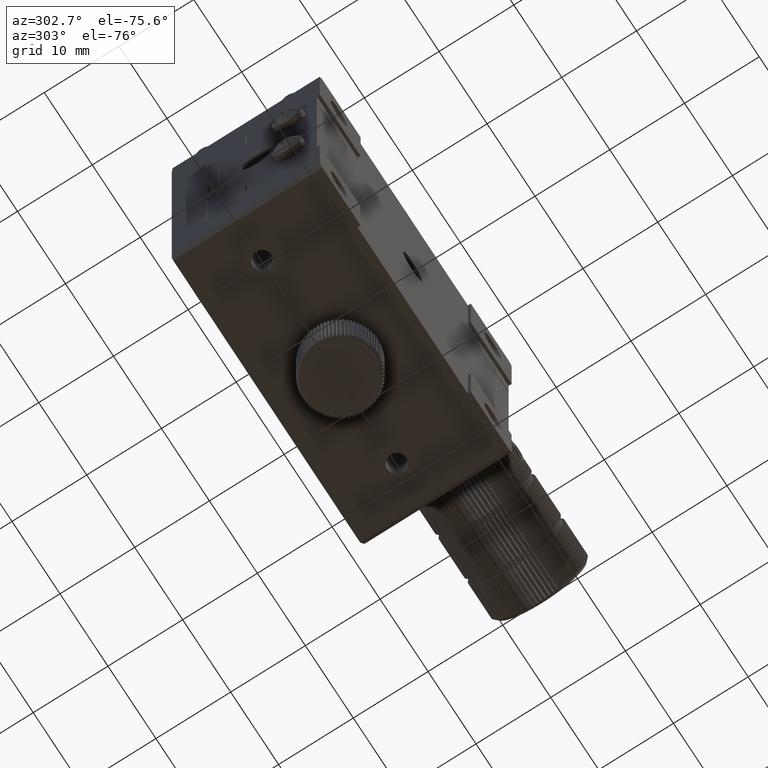
[diagram: clean part render]
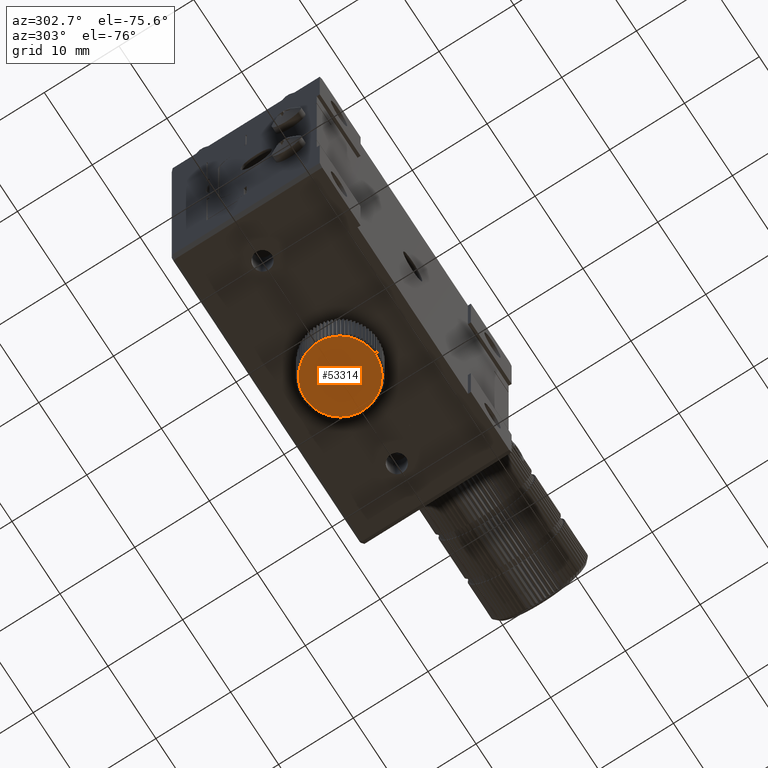
[diagram: same view with one face highlighted and labeled with its STEP entity id]
A machine part, auxiliary view. The second image highlights one B-rep face of the part: STEP entity #53314.
In plain terms, the highlighted planar face has unit normal (-0, -0, 1).
Its self-contained STEP definition (entity closure, byte-faithful):
#256 = ORIENTED_EDGE ( 'NONE', *, *, #23901, .F. ) ;
#514 = AXIS2_PLACEMENT_3D ( 'NONE', #41729, #52090, #58425 ) ;
#773 = EDGE_CURVE ( 'NONE', #45809, #7675, #7425, .T. ) ;
#820 = VERTEX_POINT ( 'NONE', #45579 ) ;
#827 = DIRECTION ( 'NONE',  ( 2.168404344996439155E-17, -3.491130995446218195E-15, 1.000000000000000000 ) ) ;
#975 = DIRECTION ( 'NONE',  ( 2.168404344996439155E-17, -3.491130995446218195E-15, 1.000000000000000000 ) ) ;
#1006 = ORIENTED_EDGE ( 'NONE', *, *, #43957, .F. ) ;
#1113 = DIRECTION ( 'NONE',  ( 0.000000000000000000, -1.000000000000000000, -3.506355962112837305E-15 ) ) ;
#1231 = VERTEX_POINT ( 'NONE', #56454 ) ;
#1389 = AXIS2_PLACEMENT_3D ( 'NONE', #54871, #15355, #24406 ) ;
#1409 = VERTEX_POINT ( 'NONE', #34017 ) ;
#1517 = AXIS2_PLACEMENT_3D ( 'NONE', #12290, #59127, #27690 ) ;
#1700 = CARTESIAN_POINT ( 'NONE',  ( -35.59315457866764376, -4.442869900124963856, -1.419323750673826545 ) ) ;
#1747 = AXIS2_PLACEMENT_3D ( 'NONE', #4681, #10391, #65633 ) ;
#1778 = CARTESIAN_POINT ( 'NONE',  ( -29.24642549279923998, 0.1682986944871039947, -1.419323750673810780 ) ) ;
#1896 = EDGE_CURVE ( 'NONE', #7675, #51471, #51354, .T. ) ;
#2040 = ORIENTED_EDGE ( 'NONE', *, *, #50740, .F. ) ;
#2436 = DIRECTION ( 'NONE',  ( 2.168404344996439155E-17, -3.491130995446218195E-15, 1.000000000000000000 ) ) ;
#2738 = EDGE_CURVE ( 'NONE', #9558, #44261, #52672, .T. ) ;
#2821 = EDGE_CURVE ( 'NONE', #14274, #23092, #13088, .T. ) ;
#2880 = ORIENTED_EDGE ( 'NONE', *, *, #49692, .F. ) ;
#2923 = DIRECTION ( 'NONE',  ( 0.000000000000000000, -1.000000000000000000, -3.506355962112837305E-15 ) ) ;
#3129 = CARTESIAN_POINT ( 'NONE',  ( -33.94169290550048856, -0.04256600815840694968, -1.419323750724288402 ) ) ;
#3220 = VERTEX_POINT ( 'NONE', #31158 ) ;
#3251 = CARTESIAN_POINT ( 'NONE',  ( -35.59315457866774324, 4.357737883808117552, -1.419323750673795681 ) ) ;
#3541 = ORIENTED_EDGE ( 'NONE', *, *, #40889, .F. ) ;
#3711 = CIRCLE ( 'NONE', #42214, 4.699999999957030106 ) ;
#3785 = VERTEX_POINT ( 'NONE', #35664 ) ;
#3975 = CARTESIAN_POINT ( 'NONE',  ( -33.94169290550048856, -0.04256600815840694968, -1.419323750724288402 ) ) ;
#4136 = DIRECTION ( 'NONE',  ( 0.000000000000000000, -1.000000000000000000, -3.506355962112837305E-15 ) ) ;
#4320 = DIRECTION ( 'NONE',  ( 0.000000000000000000, -1.000000000000000000, -3.506355962112837305E-15 ) ) ;
#4405 = EDGE_CURVE ( 'NONE', #62435, #26683, #17438, .T. ) ;
#4428 = CARTESIAN_POINT ( 'NONE',  ( -33.94169290550048856, -0.04256600815840694968, -1.419323750724288402 ) ) ;
#4503 = ORIENTED_EDGE ( 'NONE', *, *, #9650, .F. ) ;
#4541 = EDGE_CURVE ( 'NONE', #1409, #3785, #60157, .T. ) ;
#4590 = CARTESIAN_POINT ( 'NONE',  ( -33.94169290550048856, -0.04256600815840694968, -1.419323750724288402 ) ) ;
#4658 = CARTESIAN_POINT ( 'NONE',  ( -33.94169290550048856, -0.04256600815840694968, -1.419323750724288402 ) ) ;
#4681 = CARTESIAN_POINT ( 'NONE',  ( -33.94169290550048856, -0.04256600815840694968, -1.419323750724288402 ) ) ;
#4737 = CARTESIAN_POINT ( 'NONE',  ( -36.35231950928615419, -4.077275338050322162, -1.419323750673825213 ) ) ;
#4763 = AXIS2_PLACEMENT_3D ( 'NONE', #59121, #43416, #17939 ) ;
#5173 = DIRECTION ( 'NONE',  ( 0.000000000000000000, -1.000000000000000000, -3.506355962112837305E-15 ) ) ;
#5261 = CARTESIAN_POINT ( 'NONE',  ( -34.78091031104642639, 4.581903058212867919, -1.419323750673795459 ) ) ;
#5407 = AXIS2_PLACEMENT_3D ( 'NONE', #55379, #34987, #55058 ) ;
#5408 = VERTEX_POINT ( 'NONE', #45943 ) ;
#5526 = DIRECTION ( 'NONE',  ( 0.000000000000000000, -1.000000000000000000, -3.506355962112837305E-15 ) ) ;
#5567 = VERTEX_POINT ( 'NONE', #37237 ) ;
#5624 = DIRECTION ( 'NONE',  ( 0.000000000000000000, -1.000000000000000000, -3.506355962112837305E-15 ) ) ;
#5679 = ORIENTED_EDGE ( 'NONE', *, *, #56132, .F. ) ;
#5719 = CARTESIAN_POINT ( 'NONE',  ( -38.52385409271317940, 1.003282381426655379, -1.419323750673807227 ) ) ;
#5723 = DIRECTION ( 'NONE',  ( 0.000000000000000000, -1.000000000000000000, -3.506355962112837305E-15 ) ) ;
#5851 = CARTESIAN_POINT ( 'NONE',  ( -32.29023123233326942, -4.442869900124938098, -1.419323750673826545 ) ) ;
#6101 = DIRECTION ( 'NONE',  ( 2.168404344996439155E-17, -3.491130995446218195E-15, 1.000000000000000000 ) ) ;
#6169 = ORIENTED_EDGE ( 'NONE', *, *, #12548, .F. ) ;
#6372 = CARTESIAN_POINT ( 'NONE',  ( -33.94169290550048856, -0.04256600815840694968, -1.419323750724288402 ) ) ;
#6403 = EDGE_CURVE ( 'NONE', #55124, #63826, #64623, .T. ) ;
#6504 = VERTEX_POINT ( 'NONE', #32044 ) ;
#6526 = CARTESIAN_POINT ( 'NONE',  ( -33.94169290550048856, -0.04256600815840694968, -1.419323750724288402 ) ) ;
#6529 = ORIENTED_EDGE ( 'NONE', *, *, #62253, .F. ) ;
#6636 = VERTEX_POINT ( 'NONE', #33364 ) ;
#6657 = EDGE_CURVE ( 'NONE', #1231, #51564, #25096, .T. ) ;
#6669 = CIRCLE ( 'NONE', #36688, 4.699999999957030106 ) ;
#6728 = CIRCLE ( 'NONE', #1389, 4.699999999957030106 ) ;
#6813 = CARTESIAN_POINT ( 'NONE',  ( -34.36299765734271006, -4.723645189893240115, -1.419323750673827433 ) ) ;
#7011 = CIRCLE ( 'NONE', #36964, 4.699999999957030106 ) ;
#7367 = DIRECTION ( 'NONE',  ( 2.168404344996439155E-17, -3.491130995446218195E-15, 1.000000000000000000 ) ) ;
#7387 = CARTESIAN_POINT ( 'NONE',  ( -33.94169290550048856, -0.04256600815840694968, -1.419323750724288402 ) ) ;
#7425 = CIRCLE ( 'NONE', #56593, 4.699999999957030106 ) ;
#7497 = EDGE_CURVE ( 'NONE', #20499, #21149, #7011, .T. ) ;
#7564 = EDGE_CURVE ( 'NONE', #45220, #55124, #37015, .T. ) ;
#7566 = ORIENTED_EDGE ( 'NONE', *, *, #47468, .F. ) ;
#7615 = CARTESIAN_POINT ( 'NONE',  ( -37.33882876545813190, -3.290560458367019159, -1.419323750673822770 ) ) ;
#7670 = CARTESIAN_POINT ( 'NONE',  ( -29.24642549279923642, -0.2534307108038799661, -1.419323750673812334 ) ) ;
#7675 = VERTEX_POINT ( 'NONE', #46804 ) ;
#7694 = AXIS2_PLACEMENT_3D ( 'NONE', #35465, #51842, #27069 ) ;
#7776 = DIRECTION ( 'NONE',  ( 0.000000000000000000, -1.000000000000000000, -3.506355962112837305E-15 ) ) ;
#7994 = CARTESIAN_POINT ( 'NONE',  ( -31.90243933166660284, -4.277119687261061287, -1.419323750673826323 ) ) ;
#8335 = DIRECTION ( 'NONE',  ( 0.000000000000000000, -1.000000000000000000, -3.506355962112837305E-15 ) ) ;
#8360 = CARTESIAN_POINT ( 'NONE',  ( -31.17910221975114382, 3.759813865369100228, -1.419323750673797901 ) ) ;
#8687 = CIRCLE ( 'NONE', #53550, 4.699999999957030106 ) ;
#8943 = DIRECTION ( 'NONE',  ( -8.360076702596113391E-30, -3.491481338843264306E-15, 1.000000000000000000 ) ) ;
#9357 = CARTESIAN_POINT ( 'NONE',  ( -30.54455704554280260, -3.290560458366970753, -1.419323750673822326 ) ) ;
#9421 = CIRCLE ( 'NONE', #53250, 4.699999999957030106 ) ;
#9558 = VERTEX_POINT ( 'NONE', #54100 ) ;
#9603 = DIRECTION ( 'NONE',  ( 2.168404344996439155E-17, -3.491130995446218195E-15, 1.000000000000000000 ) ) ;
#9650 = EDGE_CURVE ( 'NONE', #51651, #42589, #29602, .T. ) ;
#9744 = ORIENTED_EDGE ( 'NONE', *, *, #64952, .F. ) ;
#9768 = CARTESIAN_POINT ( 'NONE',  ( -33.94169290550048856, 4.657433991798622941, -1.419323750673794571 ) ) ;
#9852 = CIRCLE ( 'NONE', #55814, 4.699999999957030106 ) ;
#9933 = FACE_OUTER_BOUND ( 'NONE', #33378, .T. ) ;
#9966 = CARTESIAN_POINT ( 'NONE',  ( -33.94169290550048856, -0.04256600815840694968, -1.419323750724288402 ) ) ;
#10031 = DIRECTION ( 'NONE',  ( 0.000000000000000000, -1.000000000000000000, -3.506355962112837305E-15 ) ) ;
#10081 = ORIENTED_EDGE ( 'NONE', *, *, #28110, .F. ) ;
#10082 = VERTEX_POINT ( 'NONE', #45488 ) ;
#10201 = DIRECTION ( 'NONE',  ( 0.000000000000000000, -1.000000000000000000, -3.506355962112837305E-15 ) ) ;
#10267 = DIRECTION ( 'NONE',  ( 0.000000000000000000, -1.000000000000000000, -3.491481338843264306E-15 ) ) ;
#10391 = DIRECTION ( 'NONE',  ( 2.168404344996439155E-17, -3.491130995446218195E-15, 1.000000000000000000 ) ) ;
#10413 = ORIENTED_EDGE ( 'NONE', *, *, #57406, .F. ) ;
#10435 = CARTESIAN_POINT ( 'NONE',  ( -33.94169290550048856, -0.04256600815840694968, -1.419323750724288402 ) ) ;
#10447 = CARTESIAN_POINT ( 'NONE',  ( -33.52038815365824576, 4.638513173576423121, -1.419323750673795015 ) ) ;
#10706 = AXIS2_PLACEMENT_3D ( 'NONE', #21458, #37907, #33195 ) ;
#10723 = ORIENTED_EDGE ( 'NONE', *, *, #42475, .F. ) ;
#10748 = EDGE_CURVE ( 'NONE', #52390, #10082, #56563, .T. ) ;
#10794 = CIRCLE ( 'NONE', #62103, 4.699999999957030106 ) ;
#10945 = CIRCLE ( 'NONE', #53700, 4.699999999957030106 ) ;
#11103 = CARTESIAN_POINT ( 'NONE',  ( -33.94169290550048856, -0.04256600815840694968, -1.419323750724288402 ) ) ;
#11402 = ORIENTED_EDGE ( 'NONE', *, *, #60275, .F. ) ;
#11759 = EDGE_CURVE ( 'NONE', #24717, #820, #24601, .T. ) ;
#11809 = EDGE_CURVE ( 'NONE', #42589, #5567, #41715, .T. ) ;
#11981 = VERTEX_POINT ( 'NONE', #62580 ) ;
#11997 = CIRCLE ( 'NONE', #43014, 4.699999999957030106 ) ;
#12021 = CIRCLE ( 'NONE', #23835, 4.699999999957030106 ) ;
#12047 = ORIENTED_EDGE ( 'NONE', *, *, #17854, .F. ) ;
#12244 = AXIS2_PLACEMENT_3D ( 'NONE', #11103, #31540, #51925 ) ;
#12290 = CARTESIAN_POINT ( 'NONE',  ( -33.94169290550048856, -0.04256600815840694968, -1.419323750724288402 ) ) ;
#12324 = CARTESIAN_POINT ( 'NONE',  ( -38.41165853204682179, -1.494945881707433699, -1.419323750673816331 ) ) ;
#12333 = DIRECTION ( 'NONE',  ( 2.168404344996439155E-17, -3.491130995446218195E-15, 1.000000000000000000 ) ) ;
#12548 = EDGE_CURVE ( 'NONE', #30925, #16914, #8687, .T. ) ;
#12707 = EDGE_CURVE ( 'NONE', #11981, #59552, #10794, .T. ) ;
#12856 = DIRECTION ( 'NONE',  ( 0.000000000000000000, -1.000000000000000000, -3.506355962112837305E-15 ) ) ;
#12899 = AXIS2_PLACEMENT_3D ( 'NONE', #3975, #24420, #23424 ) ;
#12961 = ORIENTED_EDGE ( 'NONE', *, *, #20350, .F. ) ;
#12985 = CARTESIAN_POINT ( 'NONE',  ( -37.33882876545820295, 3.205428442050132443, -1.419323750673799900 ) ) ;
#13054 = AXIS2_PLACEMENT_3D ( 'NONE', #17170, #37626, #1113 ) ;
#13088 = CIRCLE ( 'NONE', #50529, 4.699999999957030106 ) ;
#13508 = EDGE_CURVE ( 'NONE', #5408, #56886, #33354, .T. ) ;
#13707 = ORIENTED_EDGE ( 'NONE', *, *, #42725, .F. ) ;
#13796 = DIRECTION ( 'NONE',  ( 2.168404344996439155E-17, -3.491130995446218195E-15, 1.000000000000000000 ) ) ;
#14061 = CARTESIAN_POINT ( 'NONE',  ( -31.53106630171479452, 3.992143321733492289, -1.419323750673796791 ) ) ;
#14117 = CARTESIAN_POINT ( 'NONE',  ( -36.70428359124989015, 3.759813865369062036, -1.419323750673798346 ) ) ;
#14274 = VERTEX_POINT ( 'NONE', #10447 ) ;
#14858 = CARTESIAN_POINT ( 'NONE',  ( -30.84938089361212832, 3.496869882026222509, -1.419323750673798568 ) ) ;
#15274 = CARTESIAN_POINT ( 'NONE',  ( -33.94169290550046725, 4.957433991841591947, -1.419323750673793905 ) ) ;
#15314 = DIRECTION ( 'NONE',  ( 2.168404344996439155E-17, -3.491130995446218195E-15, 1.000000000000000000 ) ) ;
#15355 = DIRECTION ( 'NONE',  ( 2.168404344996439155E-17, -3.491130995446218195E-15, 1.000000000000000000 ) ) ;
#15407 = CIRCLE ( 'NONE', #41084, 4.699999999957030106 ) ;
#15429 = ORIENTED_EDGE ( 'NONE', *, *, #773, .F. ) ;
#15451 = DIRECTION ( 'NONE',  ( 2.168404344996439155E-17, -3.491130995446218195E-15, 1.000000000000000000 ) ) ;
#15519 = EDGE_CURVE ( 'NONE', #6636, #35961, #60246, .T. ) ;
#15580 = AXIS2_PLACEMENT_3D ( 'NONE', #19395, #59905, #18759 ) ;
#15621 = CARTESIAN_POINT ( 'NONE',  ( -33.10247549995460759, 4.581903058212878577, -1.419323750673795237 ) ) ;
#15665 = AXIS2_PLACEMENT_3D ( 'NONE', #3129, #39667, #40010 ) ;
#15786 = DIRECTION ( 'NONE',  ( 2.168404344996439155E-17, -3.491130995446218195E-15, 1.000000000000000000 ) ) ;
#15853 = DIRECTION ( 'NONE',  ( 0.000000000000000000, -1.000000000000000000, -3.506355962112837305E-15 ) ) ;
#15875 = EDGE_CURVE ( 'NONE', #10082, #42836, #12021, .T. ) ;
#15887 = CARTESIAN_POINT ( 'NONE',  ( -33.94169290550048856, -0.04256600815840694968, -1.419323750724288402 ) ) ;
#15986 = ORIENTED_EDGE ( 'NONE', *, *, #28415, .F. ) ;
#16300 = AXIS2_PLACEMENT_3D ( 'NONE', #33714, #54105, #54422 ) ;
#16372 = CARTESIAN_POINT ( 'NONE',  ( -38.63696031820174426, 0.1682986944870346058, -1.419323750673810780 ) ) ;
#16733 = VERTEX_POINT ( 'NONE', #50723 ) ;
#16736 = DIRECTION ( 'NONE',  ( 2.168404344996439155E-17, -3.491130995446218195E-15, 1.000000000000000000 ) ) ;
#16781 = DIRECTION ( 'NONE',  ( 2.168404344996439155E-17, -3.491130995446218195E-15, 1.000000000000000000 ) ) ;
#16914 = VERTEX_POINT ( 'NONE', #6813 ) ;
#17004 = DIRECTION ( 'NONE',  ( 0.000000000000000000, -1.000000000000000000, -3.506355962112837305E-15 ) ) ;
#17101 = AXIS2_PLACEMENT_3D ( 'NONE', #46232, #15451, #36214 ) ;
#17105 = DIRECTION ( 'NONE',  ( 2.168404344996439155E-17, -3.491130995446218195E-15, 1.000000000000000000 ) ) ;
#17150 = CARTESIAN_POINT ( 'NONE',  ( -33.94169290550048856, -0.04256600815840694968, -1.419323750724288402 ) ) ;
#17170 = CARTESIAN_POINT ( 'NONE',  ( -33.94169290550048856, -0.04256600815840694968, -1.419323750724288402 ) ) ;
#17223 = DIRECTION ( 'NONE',  ( 0.000000000000000000, -1.000000000000000000, -3.506355962112837305E-15 ) ) ;
#17428 = EDGE_CURVE ( 'NONE', #51396, #19238, #53348, .T. ) ;
#17438 = CIRCLE ( 'NONE', #54867, 4.699999999957030106 ) ;
#17569 = CIRCLE ( 'NONE', #55001, 4.699999999957030106 ) ;
#17714 = CIRCLE ( 'NONE', #63692, 4.699999999957030106 ) ;
#17854 = EDGE_CURVE ( 'NONE', #62421, #51651, #23477, .T. ) ;
#17939 = DIRECTION ( 'NONE',  ( 0.000000000000000000, -1.000000000000000000, -3.506355962112837305E-15 ) ) ;
#18472 = EDGE_CURVE ( 'NONE', #26683, #60857, #21403, .T. ) ;
#18759 = DIRECTION ( 'NONE',  ( 0.000000000000000000, -1.000000000000000000, -3.506355962112837305E-15 ) ) ;
#19235 = CIRCLE ( 'NONE', #20324, 4.699999999957030106 ) ;
#19238 = VERTEX_POINT ( 'NONE', #20151 ) ;
#19264 = VERTEX_POINT ( 'NONE', #9357 ) ;
#19277 = AXIS2_PLACEMENT_3D ( 'NONE', #22541, #2436, #64028 ) ;
#19344 = CARTESIAN_POINT ( 'NONE',  ( -33.94169290550048856, -0.04256600815840694968, -1.419323750724288402 ) ) ;
#19395 = CARTESIAN_POINT ( 'NONE',  ( -33.94169290550048856, -0.04256600815840694968, -1.419323750724288402 ) ) ;
#19674 = CARTESIAN_POINT ( 'NONE',  ( -29.28422902523377402, -0.6734623574956022374, -1.419323750673813667 ) ) ;
#19683 = AXIS2_PLACEMENT_3D ( 'NONE', #17150, #6101, #26552 ) ;
#19855 = VERTEX_POINT ( 'NONE', #45109 ) ;
#20025 = DIRECTION ( 'NONE',  ( 0.000000000000000000, -1.000000000000000000, -3.506355962112837305E-15 ) ) ;
#20044 = CARTESIAN_POINT ( 'NONE',  ( -35.19206607965237055, -4.573191453387513761, -1.419323750673826767 ) ) ;
#20131 = CARTESIAN_POINT ( 'NONE',  ( -29.61991237454817494, -1.889783656914948651, -1.419323750673817219 ) ) ;
#20151 = CARTESIAN_POINT ( 'NONE',  ( -29.35953171828780484, -1.088414397743507678, -1.419323750673814999 ) ) ;
#20230 = AXIS2_PLACEMENT_3D ( 'NONE', #9966, #49456, #45772 ) ;
#20269 = CARTESIAN_POINT ( 'NONE',  ( -36.35231950928623945, 3.992143321733459427, -1.419323750673796791 ) ) ;
#20324 = AXIS2_PLACEMENT_3D ( 'NONE', #54691, #48672, #12856 ) ;
#20350 = EDGE_CURVE ( 'NONE', #42870, #47999, #41140, .T. ) ;
#20499 = VERTEX_POINT ( 'NONE', #14061 ) ;
#20516 = ORIENTED_EDGE ( 'NONE', *, *, #48169, .F. ) ;
#20565 = ORIENTED_EDGE ( 'NONE', *, *, #31325, .F. ) ;
#20577 = DIRECTION ( 'NONE',  ( 2.168404344996439155E-17, -3.491130995446218195E-15, 1.000000000000000000 ) ) ;
#21149 = VERTEX_POINT ( 'NONE', #66168 ) ;
#21286 = CARTESIAN_POINT ( 'NONE',  ( -33.94169290550048856, -0.04256600815840694968, -1.419323750724288402 ) ) ;
#21386 = DIRECTION ( 'NONE',  ( 0.000000000000000000, -1.000000000000000000, -3.506355962112837305E-15 ) ) ;
#21394 = ORIENTED_EDGE ( 'NONE', *, *, #2821, .F. ) ;
#21403 = CIRCLE ( 'NONE', #54304, 4.699999999957030106 ) ;
#21416 = DIRECTION ( 'NONE',  ( 2.168404344996439155E-17, -3.491130995446218195E-15, 1.000000000000000000 ) ) ;
#21458 = CARTESIAN_POINT ( 'NONE',  ( -33.94169290550048856, -0.04256600815840694968, -1.419323750724288402 ) ) ;
#21580 = CARTESIAN_POINT ( 'NONE',  ( -31.53106630171475899, -4.077275338050287523, -1.419323750673825213 ) ) ;
#21626 = CARTESIAN_POINT ( 'NONE',  ( -32.29023123233330494, 4.357737883808140644, -1.419323750673795681 ) ) ;
#21999 = ORIENTED_EDGE ( 'NONE', *, *, #47016, .F. ) ;
#22166 = VERTEX_POINT ( 'NONE', #7994 ) ;
#22266 = CARTESIAN_POINT ( 'NONE',  ( -33.10247549995457916, -4.667035074529688465, -1.419323750673827655 ) ) ;
#22408 = DIRECTION ( 'NONE',  ( 2.168404344996439155E-17, -3.491130995446218195E-15, 1.000000000000000000 ) ) ;
#22541 = CARTESIAN_POINT ( 'NONE',  ( -33.94169290550048856, -0.04256600815840694968, -1.419323750724288402 ) ) ;
#22567 = CARTESIAN_POINT ( 'NONE',  ( -33.94169290550048856, -0.04256600815840694968, -1.419323750724288402 ) ) ;
#22598 = AXIS2_PLACEMENT_3D ( 'NONE', #45685, #55698, #10201 ) ;
#22655 = CIRCLE ( 'NONE', #7694, 4.699999999957030106 ) ;
#22695 = CARTESIAN_POINT ( 'NONE',  ( -33.94169290550048856, -0.04256600815840694968, -1.419323750724288402 ) ) ;
#22744 = AXIS2_PLACEMENT_3D ( 'NONE', #63440, #38027, #17223 ) ;
#22804 = AXIS2_PLACEMENT_3D ( 'NONE', #33817, #22408, #8335 ) ;
#22845 = CIRCLE ( 'NONE', #51717, 4.699999999957030106 ) ;
#22975 = ORIENTED_EDGE ( 'NONE', *, *, #51109, .F. ) ;
#22985 = ORIENTED_EDGE ( 'NONE', *, *, #61994, .F. ) ;
#23016 = ORIENTED_EDGE ( 'NONE', *, *, #28784, .F. ) ;
#23020 = EDGE_CURVE ( 'NONE', #16914, #6504, #37558, .T. ) ;
#23092 = VERTEX_POINT ( 'NONE', #9768 ) ;
#23240 = EDGE_CURVE ( 'NONE', #35195, #51396, #39769, .T. ) ;
#23358 = CARTESIAN_POINT ( 'NONE',  ( -29.47172727895413402, 1.409813865390581400, -1.419323750673805895 ) ) ;
#23424 = DIRECTION ( 'NONE',  ( 0.000000000000000000, -1.000000000000000000, -3.506355962112837305E-15 ) ) ;
#23450 = AXIS2_PLACEMENT_3D ( 'NONE', #51939, #16781, #31867 ) ;
#23477 = CIRCLE ( 'NONE', #60891, 4.699999999957030106 ) ;
#23685 = CIRCLE ( 'NONE', #36566, 4.699999999957030106 ) ;
#23817 = AXIS2_PLACEMENT_3D ( 'NONE', #4590, #15314, #45781 ) ;
#23835 = AXIS2_PLACEMENT_3D ( 'NONE', #50881, #61567, #4320 ) ;
#23901 = EDGE_CURVE ( 'NONE', #56886, #44407, #53675, .T. ) ;
#23935 = AXIS2_PLACEMENT_3D ( 'NONE', #48569, #17105, #54255 ) ;
#23998 = CIRCLE ( 'NONE', #1517, 4.699999999957030106 ) ;
#24021 = DIRECTION ( 'NONE',  ( 0.000000000000000000, -1.000000000000000000, -3.506355962112837305E-15 ) ) ;
#24052 = AXIS2_PLACEMENT_3D ( 'NONE', #21286, #51451, #47970 ) ;
#24406 = DIRECTION ( 'NONE',  ( 0.000000000000000000, -1.000000000000000000, -3.506355962112837305E-15 ) ) ;
#24420 = DIRECTION ( 'NONE',  ( 2.168404344996439155E-17, -3.491130995446218195E-15, 1.000000000000000000 ) ) ;
#24551 = ORIENTED_EDGE ( 'NONE', *, *, #13508, .F. ) ;
#24601 = CIRCLE ( 'NONE', #10706, 4.699999999957030106 ) ;
#24717 = VERTEX_POINT ( 'NONE', #16372 ) ;
#24734 = ORIENTED_EDGE ( 'NONE', *, *, #45901, .F. ) ;
#24789 = AXIS2_PLACEMENT_3D ( 'NONE', #6526, #42717, #41730 ) ;
#24882 = DIRECTION ( 'NONE',  ( 2.168404344996439155E-17, -3.491130995446218195E-15, 1.000000000000000000 ) ) ;
#25096 = CIRCLE ( 'NONE', #4763, 4.699999999957030106 ) ;
#25165 = DIRECTION ( 'NONE',  ( 0.000000000000000000, -1.000000000000000000, -3.506355962112837305E-15 ) ) ;
#25167 = CARTESIAN_POINT ( 'NONE',  ( -33.94169290550048856, -0.04256600815840694968, -1.419323750724288402 ) ) ;
#25613 = VERTEX_POINT ( 'NONE', #7615 ) ;
#25691 = DIRECTION ( 'NONE',  ( 2.168404344996439155E-17, -3.491130995446218195E-15, 1.000000000000000000 ) ) ;
#25962 = DIRECTION ( 'NONE',  ( 0.000000000000000000, -1.000000000000000000, -3.506355962112837305E-15 ) ) ;
#26401 = CARTESIAN_POINT ( 'NONE',  ( -33.94169290550048856, -0.04256600815840694968, -1.419323750724288402 ) ) ;
#26552 = DIRECTION ( 'NONE',  ( 0.000000000000000000, -1.000000000000000000, -3.506355962112837305E-15 ) ) ;
#26601 = ORIENTED_EDGE ( 'NONE', *, *, #58715, .F. ) ;
#26610 = DIRECTION ( 'NONE',  ( 2.168404344996439155E-17, -3.491130995446218195E-15, 1.000000000000000000 ) ) ;
#26683 = VERTEX_POINT ( 'NONE', #1778 ) ;
#26833 = DIRECTION ( 'NONE',  ( 0.000000000000000000, -1.000000000000000000, -3.506355962112837305E-15 ) ) ;
#27069 = DIRECTION ( 'NONE',  ( 0.000000000000000000, -1.000000000000000000, -3.506355962112837305E-15 ) ) ;
#27215 = CARTESIAN_POINT ( 'NONE',  ( -37.61630087306659931, -2.972968076867706255, -1.419323750673821660 ) ) ;
#27417 = EDGE_CURVE ( 'NONE', #59552, #35195, #62354, .T. ) ;
#27594 = ORIENTED_EDGE ( 'NONE', *, *, #4405, .F. ) ;
#27690 = DIRECTION ( 'NONE',  ( 0.000000000000000000, -1.000000000000000000, -3.506355962112837305E-15 ) ) ;
#27734 = DIRECTION ( 'NONE',  ( 2.168404344996439155E-17, -3.491130995446218195E-15, 1.000000000000000000 ) ) ;
#27757 = VERTEX_POINT ( 'NONE', #22266 ) ;
#27809 = DIRECTION ( 'NONE',  ( 2.168404344996439155E-17, -3.491130995446218195E-15, 1.000000000000000000 ) ) ;
#27811 = DIRECTION ( 'NONE',  ( 0.000000000000000000, -1.000000000000000000, -3.506355962112837305E-15 ) ) ;
#27832 = DIRECTION ( 'NONE',  ( 2.168404344996439155E-17, -3.491130995446218195E-15, 1.000000000000000000 ) ) ;
#27858 = ORIENTED_EDGE ( 'NONE', *, *, #53449, .F. ) ;
#28082 = CARTESIAN_POINT ( 'NONE',  ( -37.03400491738882039, -3.582001898343060819, -1.419323750673823881 ) ) ;
#28110 = EDGE_CURVE ( 'NONE', #35317, #50335, #52854, .T. ) ;
#28182 = DIRECTION ( 'NONE',  ( 0.000000000000000000, -1.000000000000000000, -3.506355962112837305E-15 ) ) ;
#28383 = ORIENTED_EDGE ( 'NONE', *, *, #35436, .F. ) ;
#28403 = CARTESIAN_POINT ( 'NONE',  ( -33.94169290550048856, -0.04256600815840694968, -1.419323750724288402 ) ) ;
#28415 = EDGE_CURVE ( 'NONE', #42123, #49501, #65659, .T. ) ;
#28590 = CIRCLE ( 'NONE', #30702, 4.699999999957030106 ) ;
#28730 = CARTESIAN_POINT ( 'NONE',  ( -38.26347343645281285, 1.804651640598099682, -1.419323750673805007 ) ) ;
#28784 = EDGE_CURVE ( 'NONE', #58057, #1231, #56086, .T. ) ;
#28787 = ORIENTED_EDGE ( 'NONE', *, *, #55372, .F. ) ;
#28884 = CARTESIAN_POINT ( 'NONE',  ( -33.94169290550048856, -0.04256600815840694968, -1.419323750724288402 ) ) ;
#28971 = AXIS2_PLACEMENT_3D ( 'NONE', #39448, #9603, #55140 ) ;
#28996 = CARTESIAN_POINT ( 'NONE',  ( -33.94169290550048856, -0.04256600815840694968, -1.419323750724288402 ) ) ;
#29279 = ORIENTED_EDGE ( 'NONE', *, *, #10748, .F. ) ;
#29357 = CARTESIAN_POINT ( 'NONE',  ( -33.94169290550048856, -0.04256600815840694968, -1.419323750724288402 ) ) ;
#29602 = CIRCLE ( 'NONE', #1747, 4.699999999957030106 ) ;
#29684 = DIRECTION ( 'NONE',  ( 0.000000000000000000, -1.000000000000000000, -3.506355962112837305E-15 ) ) ;
#29853 = VERTEX_POINT ( 'NONE', #33315 ) ;
#30343 = DIRECTION ( 'NONE',  ( 0.000000000000000000, -1.000000000000000000, -3.506355962112837305E-15 ) ) ;
#30702 = AXIS2_PLACEMENT_3D ( 'NONE', #61716, #36644, #15853 ) ;
#30724 = ORIENTED_EDGE ( 'NONE', *, *, #61605, .F. ) ;
#30925 = VERTEX_POINT ( 'NONE', #57108 ) ;
#31158 = CARTESIAN_POINT ( 'NONE',  ( -34.36299765734280953, 4.638513173576417792, -1.419323750673795459 ) ) ;
#31198 = DIRECTION ( 'NONE',  ( 0.000000000000000000, -1.000000000000000000, -3.506355962112837305E-15 ) ) ;
#31325 = EDGE_CURVE ( 'NONE', #51471, #29853, #28590, .T. ) ;
#31353 = ORIENTED_EDGE ( 'NONE', *, *, #63218, .F. ) ;
#31459 = CARTESIAN_POINT ( 'NONE',  ( -38.08049190518934779, 2.184616705444286655, -1.419323750673803897 ) ) ;
#31540 = DIRECTION ( 'NONE',  ( 2.168404344996439155E-17, -3.491130995446218195E-15, 1.000000000000000000 ) ) ;
#31724 = CARTESIAN_POINT ( 'NONE',  ( -33.94169290550048856, -0.04256600815840694968, -1.419323750724288402 ) ) ;
#31840 = CIRCLE ( 'NONE', #33995, 4.699999999957030106 ) ;
#31867 = DIRECTION ( 'NONE',  ( 0.000000000000000000, -1.000000000000000000, -3.506355962112837305E-15 ) ) ;
#31905 = VERTEX_POINT ( 'NONE', #5261 ) ;
#32044 = CARTESIAN_POINT ( 'NONE',  ( -33.94169290550048856, -4.742566008115437270, -1.419323750673827655 ) ) ;
#32333 = EDGE_CURVE ( 'NONE', #50335, #30925, #41349, .T. ) ;
#32606 = AXIS2_PLACEMENT_3D ( 'NONE', #64061, #16736, #57885 ) ;
#32708 = DIRECTION ( 'NONE',  ( 2.168404344996439155E-17, -3.491130995446218195E-15, 1.000000000000000000 ) ) ;
#33143 = AXIS2_PLACEMENT_3D ( 'NONE', #61533, #45821, #49852 ) ;
#33150 = ORIENTED_EDGE ( 'NONE', *, *, #6657, .F. ) ;
#33195 = DIRECTION ( 'NONE',  ( 0.000000000000000000, -1.000000000000000000, -3.506355962112837305E-15 ) ) ;
#33315 = CARTESIAN_POINT ( 'NONE',  ( -35.98094647933430679, -4.277119687261089709, -1.419323750673825657 ) ) ;
#33321 = CIRCLE ( 'NONE', #22598, 4.699999999957030106 ) ;
#33354 = CIRCLE ( 'NONE', #24789, 4.699999999957030106 ) ;
#33364 = CARTESIAN_POINT ( 'NONE',  ( -35.19206607965245581, 4.488059437070673674, -1.419323750673795903 ) ) ;
#33378 = EDGE_LOOP ( 'NONE', ( #20516, #52041, #6169, #54097, #10081, #64519, #20565, #50359, #15429, #60371, #28383, #38908, #44906, #31353, #51740, #256, #24551, #27858, #33535, #36428, #53884, #33150, #23016, #10413, #38587, #22985, #22975, #50742, #29279, #65883, #13707, #46750, #36256, #3541, #2040, #6529, #21394, #38314, #28787, #10723, #7566, #61594, #21999, #2880, #62546, #46854, #59362, #26601, #47672, #4503, #12047, #5679, #46142, #27594, #39510, #58790, #36185, #43709, #37854, #55255, #44268, #11402, #30724, #9744, #15986, #24734, #34705, #12961, #54339, #1006 ) ) ;
#33518 = AXIS2_PLACEMENT_3D ( 'NONE', #34736, #44115, #24021 ) ;
#33535 = ORIENTED_EDGE ( 'NONE', *, *, #11759, .F. ) ;
#33576 = VERTEX_POINT ( 'NONE', #14858 ) ;
#33714 = CARTESIAN_POINT ( 'NONE',  ( -33.94169290550048856, -0.04256600815840694968, -1.419323750724288402 ) ) ;
#33811 = DIRECTION ( 'NONE',  ( 0.000000000000000000, -1.000000000000000000, -3.506355962112837305E-15 ) ) ;
#33817 = CARTESIAN_POINT ( 'NONE',  ( -33.94169290550048856, -0.04256600815840694968, -1.419323750724288402 ) ) ;
#33847 = CARTESIAN_POINT ( 'NONE',  ( -33.94169290550048856, -0.04256600815840694968, -1.419323750724288402 ) ) ;
#33868 = AXIS2_PLACEMENT_3D ( 'NONE', #47200, #36888, #31198 ) ;
#33995 = AXIS2_PLACEMENT_3D ( 'NONE', #28996, #60416, #65117 ) ;
#34017 = CARTESIAN_POINT ( 'NONE',  ( -30.26708493793436361, 2.887836060550867501, -1.419323750673800566 ) ) ;
#34221 = CARTESIAN_POINT ( 'NONE',  ( -37.86418719795471333, -2.631781820959664397, -1.419323750673820328 ) ) ;
#34315 = CIRCLE ( 'NONE', #5407, 4.699999999957030106 ) ;
#34508 = CARTESIAN_POINT ( 'NONE',  ( -33.94169290550048856, -0.04256600815840694968, -1.419323750724288402 ) ) ;
#34606 = AXIS2_PLACEMENT_3D ( 'NONE', #51737, #827, #5173 ) ;
#34705 = ORIENTED_EDGE ( 'NONE', *, *, #39125, .F. ) ;
#34736 = CARTESIAN_POINT ( 'NONE',  ( -33.94169290550048856, -0.04256600815840694968, -1.419323750724288402 ) ) ;
#34987 = DIRECTION ( 'NONE',  ( 2.168404344996439155E-17, -3.491130995446218195E-15, 1.000000000000000000 ) ) ;
#35195 = VERTEX_POINT ( 'NONE', #20131 ) ;
#35317 = VERTEX_POINT ( 'NONE', #1700 ) ;
#35339 = CIRCLE ( 'NONE', #52425, 4.699999999957030106 ) ;
#35436 = EDGE_CURVE ( 'NONE', #63826, #25613, #15407, .T. ) ;
#35465 = CARTESIAN_POINT ( 'NONE',  ( -33.94169290550048856, -0.04256600815840694968, -1.419323750724288402 ) ) ;
#35602 = CIRCLE ( 'NONE', #62296, 4.699999999957030106 ) ;
#35627 = CIRCLE ( 'NONE', #23817, 4.699999999957030106 ) ;
#35664 = CARTESIAN_POINT ( 'NONE',  ( -30.54455704554282391, 3.205428442050180848, -1.419323750673800344 ) ) ;
#35776 = AXIS2_PLACEMENT_3D ( 'NONE', #19344, #25691, #64896 ) ;
#35896 = DIRECTION ( 'NONE',  ( 2.168404344996439155E-17, -3.491130995446218195E-15, 1.000000000000000000 ) ) ;
#35961 = VERTEX_POINT ( 'NONE', #3251 ) ;
#36185 = ORIENTED_EDGE ( 'NONE', *, *, #17428, .F. ) ;
#36194 = EDGE_CURVE ( 'NONE', #25613, #45809, #39089, .T. ) ;
#36214 = DIRECTION ( 'NONE',  ( 0.000000000000000000, -1.000000000000000000, -3.506355962112837305E-15 ) ) ;
#36256 = ORIENTED_EDGE ( 'NONE', *, *, #15519, .F. ) ;
#36428 = ORIENTED_EDGE ( 'NONE', *, *, #37774, .F. ) ;
#36566 = AXIS2_PLACEMENT_3D ( 'NONE', #28884, #13796, #7776 ) ;
#36644 = DIRECTION ( 'NONE',  ( 2.168404344996439155E-17, -3.491130995446218195E-15, 1.000000000000000000 ) ) ;
#36688 = AXIS2_PLACEMENT_3D ( 'NONE', #26401, #41168, #5624 ) ;
#36888 = DIRECTION ( 'NONE',  ( 2.168404344996439155E-17, -3.491130995446218195E-15, 1.000000000000000000 ) ) ;
#36964 = AXIS2_PLACEMENT_3D ( 'NONE', #4658, #55878, #54899 ) ;
#37015 = CIRCLE ( 'NONE', #15580, 4.699999999957030106 ) ;
#37237 = CARTESIAN_POINT ( 'NONE',  ( -29.80289390581166842, 2.184616705444345719, -1.419323750673803675 ) ) ;
#37247 = VERTEX_POINT ( 'NONE', #19674 ) ;
#37558 = CIRCLE ( 'NONE', #38662, 4.699999999957030106 ) ;
#37626 = DIRECTION ( 'NONE',  ( 2.168404344996439155E-17, -3.491130995446218195E-15, 1.000000000000000000 ) ) ;
#37676 = VERTEX_POINT ( 'NONE', #55608 ) ;
#37731 = DIRECTION ( 'NONE',  ( 0.000000000000000000, -1.000000000000000000, -3.506355962112837305E-15 ) ) ;
#37774 = EDGE_CURVE ( 'NONE', #37676, #24717, #43455, .T. ) ;
#37813 = CIRCLE ( 'NONE', #34606, 4.699999999957030106 ) ;
#37854 = ORIENTED_EDGE ( 'NONE', *, *, #27417, .F. ) ;
#37907 = DIRECTION ( 'NONE',  ( 2.168404344996439155E-17, -3.491130995446218195E-15, 1.000000000000000000 ) ) ;
#38027 = DIRECTION ( 'NONE',  ( 2.168404344996439155E-17, -3.491130995446218195E-15, 1.000000000000000000 ) ) ;
#38314 = ORIENTED_EDGE ( 'NONE', *, *, #40550, .F. ) ;
#38587 = ORIENTED_EDGE ( 'NONE', *, *, #2738, .F. ) ;
#38651 = AXIS2_PLACEMENT_3D ( 'NONE', #28403, #27734, #17004 ) ;
#38662 = AXIS2_PLACEMENT_3D ( 'NONE', #25167, #35896, #45920 ) ;
#38852 = CIRCLE ( 'NONE', #22804, 4.699999999957030106 ) ;
#38908 = ORIENTED_EDGE ( 'NONE', *, *, #6403, .F. ) ;
#38942 = DIRECTION ( 'NONE',  ( 2.168404344996439155E-17, -3.491130995446218195E-15, 1.000000000000000000 ) ) ;
#39089 = CIRCLE ( 'NONE', #24052, 4.699999999957030106 ) ;
#39125 = EDGE_CURVE ( 'NONE', #47999, #22166, #31840, .T. ) ;
#39448 = CARTESIAN_POINT ( 'NONE',  ( -33.94169290550048856, -0.04256600815840694968, -1.419323750724288402 ) ) ;
#39506 = CARTESIAN_POINT ( 'NONE',  ( -33.94169290550048856, -0.04256600815840694968, -1.419323750724288402 ) ) ;
#39510 = ORIENTED_EDGE ( 'NONE', *, *, #42673, .F. ) ;
#39523 = CARTESIAN_POINT ( 'NONE',  ( -33.94169290550048856, -0.04256600815840694968, -1.419323750724288402 ) ) ;
#39531 = DIRECTION ( 'NONE',  ( 2.168404344996439155E-17, -3.491130995446218195E-15, 1.000000000000000000 ) ) ;
#39561 = CARTESIAN_POINT ( 'NONE',  ( -29.28422902523377402, 0.5883303411788193271, -1.419323750673809226 ) ) ;
#39667 = DIRECTION ( 'NONE',  ( 2.168404344996439155E-17, -3.491130995446218195E-15, 1.000000000000000000 ) ) ;
#39691 = CARTESIAN_POINT ( 'NONE',  ( -33.94169290550048856, -0.04256600815840694968, -1.419323750724288402 ) ) ;
#39769 = CIRCLE ( 'NONE', #50439, 4.699999999957030106 ) ;
#39833 = DIRECTION ( 'NONE',  ( 2.168404344996439155E-17, -3.491130995446218195E-15, 1.000000000000000000 ) ) ;
#40010 = DIRECTION ( 'NONE',  ( 0.000000000000000000, -1.000000000000000000, -3.506355962112837305E-15 ) ) ;
#40102 = DIRECTION ( 'NONE',  ( 0.000000000000000000, -1.000000000000000000, -3.506355962112837305E-15 ) ) ;
#40550 = EDGE_CURVE ( 'NONE', #44709, #14274, #35339, .T. ) ;
#40720 = CARTESIAN_POINT ( 'NONE',  ( -33.94169290550048856, -0.04256600815840694968, -1.419323750724288402 ) ) ;
#40825 = CARTESIAN_POINT ( 'NONE',  ( -30.26708493793433874, -2.972968076867653853, -1.419323750673821216 ) ) ;
#40889 = EDGE_CURVE ( 'NONE', #31905, #6636, #57818, .T. ) ;
#40893 = AXIS2_PLACEMENT_3D ( 'NONE', #43840, #53216, #58554 ) ;
#40912 = CIRCLE ( 'NONE', #53737, 4.699999999957030106 ) ;
#40982 = AXIS2_PLACEMENT_3D ( 'NONE', #7387, #27832, #48882 ) ;
#41084 = AXIS2_PLACEMENT_3D ( 'NONE', #34508, #43879, #44226 ) ;
#41140 = CIRCLE ( 'NONE', #12244, 4.699999999957030106 ) ;
#41168 = DIRECTION ( 'NONE',  ( 2.168404344996439155E-17, -3.491130995446218195E-15, 1.000000000000000000 ) ) ;
#41192 = DIRECTION ( 'NONE',  ( 0.000000000000000000, -1.000000000000000000, -3.506355962112837305E-15 ) ) ;
#41349 = CIRCLE ( 'NONE', #15665, 4.699999999957030106 ) ;
#41506 = CARTESIAN_POINT ( 'NONE',  ( -33.94169290550048856, -0.04256600815840694968, -1.419323750724288402 ) ) ;
#41606 = AXIS2_PLACEMENT_3D ( 'NONE', #61644, #15786, #5723 ) ;
#41715 = CIRCLE ( 'NONE', #50259, 4.699999999957030106 ) ;
#41730 = DIRECTION ( 'NONE',  ( 0.000000000000000000, -1.000000000000000000, -3.506355962112837305E-15 ) ) ;
#41729 = CARTESIAN_POINT ( 'NONE',  ( -33.94169290550048856, -0.04256600815840694968, -1.419323750724288402 ) ) ;
#41944 = VERTEX_POINT ( 'NONE', #46775 ) ;
#42031 = AXIS2_PLACEMENT_3D ( 'NONE', #39506, #39833, #20025 ) ;
#42053 = CARTESIAN_POINT ( 'NONE',  ( -33.94169290550048856, -0.04256600815840694968, -1.419323750724288402 ) ) ;
#42123 = VERTEX_POINT ( 'NONE', #21580 ) ;
#42164 = AXIS2_PLACEMENT_3D ( 'NONE', #10435, #50619, #25165 ) ;
#42214 = AXIS2_PLACEMENT_3D ( 'NONE', #22567, #62430, #58379 ) ;
#42317 = CARTESIAN_POINT ( 'NONE',  ( -38.26347343645277732, -1.889783656915007493, -1.419323750673817885 ) ) ;
#42475 = EDGE_CURVE ( 'NONE', #43091, #43690, #53710, .T. ) ;
#42589 = VERTEX_POINT ( 'NONE', #48517 ) ;
#42673 = EDGE_CURVE ( 'NONE', #37247, #62435, #55921, .T. ) ;
#42717 = DIRECTION ( 'NONE',  ( 2.168404344996439155E-17, -3.491130995446218195E-15, 1.000000000000000000 ) ) ;
#42725 = EDGE_CURVE ( 'NONE', #16733, #53356, #6728, .T. ) ;
#42836 = VERTEX_POINT ( 'NONE', #12985 ) ;
#42870 = VERTEX_POINT ( 'NONE', #52603 ) ;
#42985 = EDGE_CURVE ( 'NONE', #29853, #35317, #35627, .T. ) ;
#43014 = AXIS2_PLACEMENT_3D ( 'NONE', #58900, #27809, #48197 ) ;
#43091 = VERTEX_POINT ( 'NONE', #21626 ) ;
#43244 = CARTESIAN_POINT ( 'NONE',  ( -33.94169290550048856, -0.04256600815840694968, -1.419323750724288402 ) ) ;
#43275 = CARTESIAN_POINT ( 'NONE',  ( -33.94169290550048856, -0.04256600815840694968, -1.419323750724288402 ) ) ;
#43416 = DIRECTION ( 'NONE',  ( 2.168404344996439155E-17, -3.491130995446218195E-15, 1.000000000000000000 ) ) ;
#43455 = CIRCLE ( 'NONE', #33868, 4.699999999957030106 ) ;
#43690 = VERTEX_POINT ( 'NONE', #65985 ) ;
#43709 = ORIENTED_EDGE ( 'NONE', *, *, #23240, .F. ) ;
#43838 = AXIS2_PLACEMENT_3D ( 'NONE', #46856, #21416, #47185 ) ;
#43840 = CARTESIAN_POINT ( 'NONE',  ( -33.94169290550048856, -0.04256600815840694968, -1.419323750724288402 ) ) ;
#43879 = DIRECTION ( 'NONE',  ( 2.168404344996439155E-17, -3.491130995446218195E-15, 1.000000000000000000 ) ) ;
#43957 = EDGE_CURVE ( 'NONE', #41944, #27757, #11997, .T. ) ;
#44001 = VERTEX_POINT ( 'NONE', #8360 ) ;
#44115 = DIRECTION ( 'NONE',  ( 2.168404344996439155E-17, -3.491130995446218195E-15, 1.000000000000000000 ) ) ;
#44119 = EDGE_CURVE ( 'NONE', #19238, #37247, #9852, .T. ) ;
#44178 = CIRCLE ( 'NONE', #22744, 4.699999999957030106 ) ;
#44226 = DIRECTION ( 'NONE',  ( 0.000000000000000000, -1.000000000000000000, -3.506355962112837305E-15 ) ) ;
#44248 = EDGE_CURVE ( 'NONE', #51564, #37676, #6669, .T. ) ;
#44261 = VERTEX_POINT ( 'NONE', #31459 ) ;
#44268 = ORIENTED_EDGE ( 'NONE', *, *, #55710, .F. ) ;
#44407 = VERTEX_POINT ( 'NONE', #12324 ) ;
#44549 = DIRECTION ( 'NONE',  ( 0.000000000000000000, -1.000000000000000000, -3.506355962112837305E-15 ) ) ;
#44709 = VERTEX_POINT ( 'NONE', #15621 ) ;
#44903 = CIRCLE ( 'NONE', #43838, 4.699999999957030106 ) ;
#44906 = ORIENTED_EDGE ( 'NONE', *, *, #7564, .F. ) ;
#45109 = CARTESIAN_POINT ( 'NONE',  ( -37.61630087306665615, 2.887836060550815542, -1.419323750673801010 ) ) ;
#45220 = VERTEX_POINT ( 'NONE', #62958 ) ;
#45488 = CARTESIAN_POINT ( 'NONE',  ( -37.03400491738889855, 3.496869882026177656, -1.419323750673798790 ) ) ;
#45579 = CARTESIAN_POINT ( 'NONE',  ( -38.63696031820174426, -0.2534307108039424161, -1.419323750673812334 ) ) ;
#45685 = CARTESIAN_POINT ( 'NONE',  ( -33.94169290550048856, -0.04256600815840694968, -1.419323750724288402 ) ) ;
#45772 = DIRECTION ( 'NONE',  ( 0.000000000000000000, -1.000000000000000000, -3.506355962112837305E-15 ) ) ;
#45781 = DIRECTION ( 'NONE',  ( 0.000000000000000000, -1.000000000000000000, -3.506355962112837305E-15 ) ) ;
#45809 = VERTEX_POINT ( 'NONE', #28082 ) ;
#45821 = DIRECTION ( 'NONE',  ( 2.168404344996439155E-17, -3.491130995446218195E-15, 1.000000000000000000 ) ) ;
#45901 = EDGE_CURVE ( 'NONE', #22166, #42123, #49097, .T. ) ;
#45920 = DIRECTION ( 'NONE',  ( 0.000000000000000000, -1.000000000000000000, -3.506355962112837305E-15 ) ) ;
#45943 = CARTESIAN_POINT ( 'NONE',  ( -38.59915678576719955, -0.6734623574956716263, -1.419323750673813889 ) ) ;
#46076 = DIRECTION ( 'NONE',  ( 2.168404344996439155E-17, -3.491130995446218195E-15, 1.000000000000000000 ) ) ;
#46142 = ORIENTED_EDGE ( 'NONE', *, *, #18472, .F. ) ;
#46179 = DIRECTION ( 'NONE',  ( 2.168404344996439155E-17, -3.491130995446218195E-15, 1.000000000000000000 ) ) ;
#46232 = CARTESIAN_POINT ( 'NONE',  ( -33.94169290550048856, -0.04256600815840694968, -1.419323750724288402 ) ) ;
#46750 = ORIENTED_EDGE ( 'NONE', *, *, #62404, .F. ) ;
#46775 = CARTESIAN_POINT ( 'NONE',  ( -33.52038815365820312, -4.723645189893233898, -1.419323750673827877 ) ) ;
#46804 = CARTESIAN_POINT ( 'NONE',  ( -36.70428359124980489, -3.844945881685931433, -1.419323750673824103 ) ) ;
#46854 = ORIENTED_EDGE ( 'NONE', *, *, #4541, .F. ) ;
#46856 = CARTESIAN_POINT ( 'NONE',  ( -33.94169290550048856, -0.04256600815840694968, -1.419323750724288402 ) ) ;
#47016 = EDGE_CURVE ( 'NONE', #44001, #20499, #55651, .T. ) ;
#47185 = DIRECTION ( 'NONE',  ( 0.000000000000000000, -1.000000000000000000, -3.506355962112837305E-15 ) ) ;
#47200 = CARTESIAN_POINT ( 'NONE',  ( -33.94169290550048856, -0.04256600815840694968, -1.419323750724288402 ) ) ;
#47231 = DIRECTION ( 'NONE',  ( 2.168404344996439155E-17, -3.491130995446218195E-15, 1.000000000000000000 ) ) ;
#47468 = EDGE_CURVE ( 'NONE', #21149, #43091, #34315, .T. ) ;
#47570 = DIRECTION ( 'NONE',  ( 2.168404344996439155E-17, -3.491130995446218195E-15, 1.000000000000000000 ) ) ;
#47672 = ORIENTED_EDGE ( 'NONE', *, *, #11809, .F. ) ;
#47896 = DIRECTION ( 'NONE',  ( 2.168404344996439155E-17, -3.491130995446218195E-15, 1.000000000000000000 ) ) ;
#47970 = DIRECTION ( 'NONE',  ( 0.000000000000000000, -1.000000000000000000, -3.506355962112837305E-15 ) ) ;
#47999 = VERTEX_POINT ( 'NONE', #5851 ) ;
#48112 = CIRCLE ( 'NONE', #17101, 4.699999999957030106 ) ;
#48169 = EDGE_CURVE ( 'NONE', #6504, #41944, #19235, .T. ) ;
#48197 = DIRECTION ( 'NONE',  ( 0.000000000000000000, -1.000000000000000000, -3.506355962112837305E-15 ) ) ;
#48224 = CARTESIAN_POINT ( 'NONE',  ( -33.94169290550048856, -0.04256600815840694968, -1.419323750724288402 ) ) ;
#48456 = CARTESIAN_POINT ( 'NONE',  ( -38.52385409271315098, -1.088414397743576956, -1.419323750673814777 ) ) ;
#48517 = CARTESIAN_POINT ( 'NONE',  ( -29.61991237454818915, 1.804651640598165629, -1.419323750673805229 ) ) ;
#48569 = CARTESIAN_POINT ( 'NONE',  ( -33.94169290550048856, -0.04256600815840694968, -1.419323750724288402 ) ) ;
#48571 = DIRECTION ( 'NONE',  ( 0.000000000000000000, -1.000000000000000000, -3.506355962112837305E-15 ) ) ;
#48672 = DIRECTION ( 'NONE',  ( 2.168404344996439155E-17, -3.491130995446218195E-15, 1.000000000000000000 ) ) ;
#48882 = DIRECTION ( 'NONE',  ( 0.000000000000000000, -1.000000000000000000, -3.506355962112837305E-15 ) ) ;
#48928 = AXIS2_PLACEMENT_3D ( 'NONE', #15274, #8943, #10267 ) ;
#49073 = CARTESIAN_POINT ( 'NONE',  ( -30.84938089361210700, -3.582001898343015966, -1.419323750673823659 ) ) ;
#49097 = CIRCLE ( 'NONE', #20230, 4.699999999957030106 ) ;
#49170 = VERTEX_POINT ( 'NONE', #40825 ) ;
#49456 = DIRECTION ( 'NONE',  ( 2.168404344996439155E-17, -3.491130995446218195E-15, 1.000000000000000000 ) ) ;
#49501 = VERTEX_POINT ( 'NONE', #56353 ) ;
#49692 = EDGE_CURVE ( 'NONE', #33576, #44001, #23685, .T. ) ;
#49744 = DIRECTION ( 'NONE',  ( 2.168404344996439155E-17, -3.491130995446218195E-15, 1.000000000000000000 ) ) ;
#49852 = DIRECTION ( 'NONE',  ( 0.000000000000000000, -1.000000000000000000, -3.506355962112837305E-15 ) ) ;
#49927 = CARTESIAN_POINT ( 'NONE',  ( -29.80289390581165065, -2.269748721761132071, -1.419323750673819218 ) ) ;
#50259 = AXIS2_PLACEMENT_3D ( 'NONE', #43244, #47231, #48571 ) ;
#50335 = VERTEX_POINT ( 'NONE', #20044 ) ;
#50359 = ORIENTED_EDGE ( 'NONE', *, *, #1896, .F. ) ;
#50439 = AXIS2_PLACEMENT_3D ( 'NONE', #22695, #12333, #2923 ) ;
#50529 = AXIS2_PLACEMENT_3D ( 'NONE', #15887, #20577, #30343 ) ;
#50619 = DIRECTION ( 'NONE',  ( 2.168404344996439155E-17, -3.491130995446218195E-15, 1.000000000000000000 ) ) ;
#50723 = CARTESIAN_POINT ( 'NONE',  ( -35.98094647933440626, 4.191987670944231859, -1.419323750673796791 ) ) ;
#50740 = EDGE_CURVE ( 'NONE', #3220, #31905, #40912, .T. ) ;
#50742 = ORIENTED_EDGE ( 'NONE', *, *, #15875, .F. ) ;
#50774 = PLANE ( 'NONE',  #48928 ) ;
#50870 = DIRECTION ( 'NONE',  ( 2.168404344996439155E-17, -3.491130995446218195E-15, 1.000000000000000000 ) ) ;
#50881 = CARTESIAN_POINT ( 'NONE',  ( -33.94169290550048856, -0.04256600815840694968, -1.419323750724288402 ) ) ;
#51109 = EDGE_CURVE ( 'NONE', #42836, #19855, #35602, .T. ) ;
#51354 = CIRCLE ( 'NONE', #19277, 4.699999999957030106 ) ;
#51396 = VERTEX_POINT ( 'NONE', #58652 ) ;
#51451 = DIRECTION ( 'NONE',  ( 2.168404344996439155E-17, -3.491130995446218195E-15, 1.000000000000000000 ) ) ;
#51471 = VERTEX_POINT ( 'NONE', #4737 ) ;
#51503 = CARTESIAN_POINT ( 'NONE',  ( -30.01919861304624604, 2.546649804642818982, -1.419323750673802120 ) ) ;
#51564 = VERTEX_POINT ( 'NONE', #5719 ) ;
#51651 = VERTEX_POINT ( 'NONE', #23358 ) ;
#51717 = AXIS2_PLACEMENT_3D ( 'NONE', #56244, #975, #21386 ) ;
#51737 = CARTESIAN_POINT ( 'NONE',  ( -33.94169290550048856, -0.04256600815840694968, -1.419323750724288402 ) ) ;
#51740 = ORIENTED_EDGE ( 'NONE', *, *, #56470, .F. ) ;
#51842 = DIRECTION ( 'NONE',  ( 2.168404344996439155E-17, -3.491130995446218195E-15, 1.000000000000000000 ) ) ;
#51925 = DIRECTION ( 'NONE',  ( 0.000000000000000000, -1.000000000000000000, -3.506355962112837305E-15 ) ) ;
#51939 = CARTESIAN_POINT ( 'NONE',  ( -33.94169290550048856, -0.04256600815840694968, -1.419323750724288402 ) ) ;
#52041 = ORIENTED_EDGE ( 'NONE', *, *, #23020, .F. ) ;
#52090 = DIRECTION ( 'NONE',  ( 2.168404344996439155E-17, -3.491130995446218195E-15, 1.000000000000000000 ) ) ;
#52240 = CARTESIAN_POINT ( 'NONE',  ( -33.94169290550048856, -0.04256600815840694968, -1.419323750724288402 ) ) ;
#52390 = VERTEX_POINT ( 'NONE', #14117 ) ;
#52425 = AXIS2_PLACEMENT_3D ( 'NONE', #53240, #7367, #27811 ) ;
#52603 = CARTESIAN_POINT ( 'NONE',  ( -32.69131973134854974, -4.573191453387496885, -1.419323750673827433 ) ) ;
#52672 = CIRCLE ( 'NONE', #16300, 4.699999999957030106 ) ;
#52854 = CIRCLE ( 'NONE', #19683, 4.699999999957030106 ) ;
#53114 = VERTEX_POINT ( 'NONE', #51503 ) ;
#53216 = DIRECTION ( 'NONE',  ( 2.168404344996439155E-17, -3.491130995446218195E-15, 1.000000000000000000 ) ) ;
#53240 = CARTESIAN_POINT ( 'NONE',  ( -33.94169290550048856, -0.04256600815840694968, -1.419323750724288402 ) ) ;
#53250 = AXIS2_PLACEMENT_3D ( 'NONE', #42053, #61781, #5526 ) ;
#53314 = ADVANCED_FACE ( 'NONE', ( #9933 ), #50774, .F. ) ;
#53348 = CIRCLE ( 'NONE', #41606, 4.699999999957030106 ) ;
#53356 = VERTEX_POINT ( 'NONE', #20269 ) ;
#53449 = EDGE_CURVE ( 'NONE', #820, #5408, #9421, .T. ) ;
#53550 = AXIS2_PLACEMENT_3D ( 'NONE', #52240, #56031, #62631 ) ;
#53675 = CIRCLE ( 'NONE', #13054, 4.699999999957030106 ) ;
#53700 = AXIS2_PLACEMENT_3D ( 'NONE', #43275, #38942, #59959 ) ;
#53710 = CIRCLE ( 'NONE', #40893, 4.699999999957030106 ) ;
#53737 = AXIS2_PLACEMENT_3D ( 'NONE', #61127, #46076, #40102 ) ;
#53884 = ORIENTED_EDGE ( 'NONE', *, *, #44248, .F. ) ;
#54097 = ORIENTED_EDGE ( 'NONE', *, *, #32333, .F. ) ;
#54100 = CARTESIAN_POINT ( 'NONE',  ( -37.86418719795477017, 2.546649804642763470, -1.419323750673802120 ) ) ;
#54105 = DIRECTION ( 'NONE',  ( 2.168404344996439155E-17, -3.491130995446218195E-15, 1.000000000000000000 ) ) ;
#54197 = CARTESIAN_POINT ( 'NONE',  ( -29.35953171828781905, 1.003282381426724656, -1.419323750673807449 ) ) ;
#54255 = DIRECTION ( 'NONE',  ( 0.000000000000000000, -1.000000000000000000, -3.506355962112837305E-15 ) ) ;
#54304 = AXIS2_PLACEMENT_3D ( 'NONE', #31724, #32708, #37731 ) ;
#54339 = ORIENTED_EDGE ( 'NONE', *, *, #61757, .F. ) ;
#54422 = DIRECTION ( 'NONE',  ( 0.000000000000000000, -1.000000000000000000, -3.506355962112837305E-15 ) ) ;
#54691 = CARTESIAN_POINT ( 'NONE',  ( -33.94169290550048856, -0.04256600815840694968, -1.419323750724288402 ) ) ;
#54867 = AXIS2_PLACEMENT_3D ( 'NONE', #6372, #47570, #26833 ) ;
#54871 = CARTESIAN_POINT ( 'NONE',  ( -33.94169290550048856, -0.04256600815840694968, -1.419323750724288402 ) ) ;
#54899 = DIRECTION ( 'NONE',  ( 0.000000000000000000, -1.000000000000000000, -3.506355962112837305E-15 ) ) ;
#54954 = CIRCLE ( 'NONE', #58197, 4.699999999957030106 ) ;
#55001 = AXIS2_PLACEMENT_3D ( 'NONE', #4428, #24882, #33811 ) ;
#55058 = DIRECTION ( 'NONE',  ( 0.000000000000000000, -1.000000000000000000, -3.506355962112837305E-15 ) ) ;
#55124 = VERTEX_POINT ( 'NONE', #34221 ) ;
#55140 = DIRECTION ( 'NONE',  ( 0.000000000000000000, -1.000000000000000000, -3.506355962112837305E-15 ) ) ;
#55255 = ORIENTED_EDGE ( 'NONE', *, *, #12707, .F. ) ;
#55372 = EDGE_CURVE ( 'NONE', #43690, #44709, #44903, .T. ) ;
#55379 = CARTESIAN_POINT ( 'NONE',  ( -33.94169290550048856, -0.04256600815840694968, -1.419323750724288402 ) ) ;
#55608 = CARTESIAN_POINT ( 'NONE',  ( -38.59915678576721376, 0.5883303411787499382, -1.419323750673809448 ) ) ;
#55651 = CIRCLE ( 'NONE', #28971, 4.699999999957030106 ) ;
#55698 = DIRECTION ( 'NONE',  ( 2.168404344996439155E-17, -3.491130995446218195E-15, 1.000000000000000000 ) ) ;
#55710 = EDGE_CURVE ( 'NONE', #49170, #11981, #56616, .T. ) ;
#55814 = AXIS2_PLACEMENT_3D ( 'NONE', #39523, #50870, #10031 ) ;
#55878 = DIRECTION ( 'NONE',  ( 2.168404344996439155E-17, -3.491130995446218195E-15, 1.000000000000000000 ) ) ;
#55921 = CIRCLE ( 'NONE', #42031, 4.699999999957030106 ) ;
#56031 = DIRECTION ( 'NONE',  ( 2.168404344996439155E-17, -3.491130995446218195E-15, 1.000000000000000000 ) ) ;
#56086 = CIRCLE ( 'NONE', #514, 4.699999999957030106 ) ;
#56132 = EDGE_CURVE ( 'NONE', #60857, #62421, #48112, .T. ) ;
#56244 = CARTESIAN_POINT ( 'NONE',  ( -33.94169290550048856, -0.04256600815840694968, -1.419323750724288402 ) ) ;
#56353 = CARTESIAN_POINT ( 'NONE',  ( -31.17910221975111540, -3.844945881685896794, -1.419323750673824769 ) ) ;
#56454 = CARTESIAN_POINT ( 'NONE',  ( -38.41165853204685021, 1.409813865390519005, -1.419323750673805895 ) ) ;
#56470 = EDGE_CURVE ( 'NONE', #44407, #57492, #65288, .T. ) ;
#56563 = CIRCLE ( 'NONE', #23450, 4.699999999957030106 ) ;
#56593 = AXIS2_PLACEMENT_3D ( 'NONE', #48224, #47896, #28182 ) ;
#56616 = CIRCLE ( 'NONE', #33143, 4.699999999957030106 ) ;
#56886 = VERTEX_POINT ( 'NONE', #48456 ) ;
#57108 = CARTESIAN_POINT ( 'NONE',  ( -34.78091031104634823, -4.667035074529699124, -1.419323750673826989 ) ) ;
#57142 = CIRCLE ( 'NONE', #32606, 4.699999999957030106 ) ;
#57406 = EDGE_CURVE ( 'NONE', #44261, #58057, #33321, .T. ) ;
#57492 = VERTEX_POINT ( 'NONE', #42317 ) ;
#57818 = CIRCLE ( 'NONE', #38651, 4.699999999957030106 ) ;
#57885 = DIRECTION ( 'NONE',  ( 0.000000000000000000, -1.000000000000000000, -3.506355962112837305E-15 ) ) ;
#57886 = EDGE_CURVE ( 'NONE', #3785, #33576, #22655, .T. ) ;
#58057 = VERTEX_POINT ( 'NONE', #28730 ) ;
#58197 = AXIS2_PLACEMENT_3D ( 'NONE', #29357, #49744, #29684 ) ;
#58379 = DIRECTION ( 'NONE',  ( 0.000000000000000000, -1.000000000000000000, -3.506355962112837305E-15 ) ) ;
#58425 = DIRECTION ( 'NONE',  ( 0.000000000000000000, -1.000000000000000000, -3.506355962112837305E-15 ) ) ;
#58554 = DIRECTION ( 'NONE',  ( 0.000000000000000000, -1.000000000000000000, -3.506355962112837305E-15 ) ) ;
#58652 = CARTESIAN_POINT ( 'NONE',  ( -29.47172727895413047, -1.494945881707371305, -1.419323750673816109 ) ) ;
#58715 = EDGE_CURVE ( 'NONE', #5567, #53114, #38852, .T. ) ;
#58790 = ORIENTED_EDGE ( 'NONE', *, *, #44119, .F. ) ;
#58900 = CARTESIAN_POINT ( 'NONE',  ( -33.94169290550048856, -0.04256600815840694968, -1.419323750724288402 ) ) ;
#59121 = CARTESIAN_POINT ( 'NONE',  ( -33.94169290550048856, -0.04256600815840694968, -1.419323750724288402 ) ) ;
#59127 = DIRECTION ( 'NONE',  ( 2.168404344996439155E-17, -3.491130995446218195E-15, 1.000000000000000000 ) ) ;
#59362 = ORIENTED_EDGE ( 'NONE', *, *, #61004, .F. ) ;
#59552 = VERTEX_POINT ( 'NONE', #49927 ) ;
#59582 = EDGE_CURVE ( 'NONE', #53356, #52390, #10945, .T. ) ;
#59905 = DIRECTION ( 'NONE',  ( 2.168404344996439155E-17, -3.491130995446218195E-15, 1.000000000000000000 ) ) ;
#59959 = DIRECTION ( 'NONE',  ( 0.000000000000000000, -1.000000000000000000, -3.506355962112837305E-15 ) ) ;
#60157 = CIRCLE ( 'NONE', #40982, 4.699999999957030106 ) ;
#60246 = CIRCLE ( 'NONE', #23935, 4.699999999957030106 ) ;
#60275 = EDGE_CURVE ( 'NONE', #19264, #49170, #44178, .T. ) ;
#60371 = ORIENTED_EDGE ( 'NONE', *, *, #36194, .F. ) ;
#60416 = DIRECTION ( 'NONE',  ( 2.168404344996439155E-17, -3.491130995446218195E-15, 1.000000000000000000 ) ) ;
#60857 = VERTEX_POINT ( 'NONE', #39561 ) ;
#60891 = AXIS2_PLACEMENT_3D ( 'NONE', #41506, #46179, #41192 ) ;
#61004 = EDGE_CURVE ( 'NONE', #53114, #1409, #22845, .T. ) ;
#61045 = DIRECTION ( 'NONE',  ( 2.168404344996439155E-17, -3.491130995446218195E-15, 1.000000000000000000 ) ) ;
#61127 = CARTESIAN_POINT ( 'NONE',  ( -33.94169290550048856, -0.04256600815840694968, -1.419323750724288402 ) ) ;
#61533 = CARTESIAN_POINT ( 'NONE',  ( -33.94169290550048856, -0.04256600815840694968, -1.419323750724288402 ) ) ;
#61567 = DIRECTION ( 'NONE',  ( 2.168404344996439155E-17, -3.491130995446218195E-15, 1.000000000000000000 ) ) ;
#61594 = ORIENTED_EDGE ( 'NONE', *, *, #7497, .F. ) ;
#61605 = EDGE_CURVE ( 'NONE', #62924, #19264, #23998, .T. ) ;
#61644 = CARTESIAN_POINT ( 'NONE',  ( -33.94169290550048856, -0.04256600815840694968, -1.419323750724288402 ) ) ;
#61716 = CARTESIAN_POINT ( 'NONE',  ( -33.94169290550048856, -0.04256600815840694968, -1.419323750724288402 ) ) ;
#61757 = EDGE_CURVE ( 'NONE', #27757, #42870, #54954, .T. ) ;
#61781 = DIRECTION ( 'NONE',  ( 2.168404344996439155E-17, -3.491130995446218195E-15, 1.000000000000000000 ) ) ;
#61994 = EDGE_CURVE ( 'NONE', #19855, #9558, #3711, .T. ) ;
#62103 = AXIS2_PLACEMENT_3D ( 'NONE', #33847, #39531, #44549 ) ;
#62253 = EDGE_CURVE ( 'NONE', #23092, #3220, #57142, .T. ) ;
#62296 = AXIS2_PLACEMENT_3D ( 'NONE', #39691, #61045, #4136 ) ;
#62354 = CIRCLE ( 'NONE', #33518, 4.699999999957030106 ) ;
#62404 = EDGE_CURVE ( 'NONE', #35961, #16733, #17569, .T. ) ;
#62421 = VERTEX_POINT ( 'NONE', #54197 ) ;
#62430 = DIRECTION ( 'NONE',  ( 2.168404344996439155E-17, -3.491130995446218195E-15, 1.000000000000000000 ) ) ;
#62435 = VERTEX_POINT ( 'NONE', #7670 ) ;
#62546 = ORIENTED_EDGE ( 'NONE', *, *, #57886, .F. ) ;
#62580 = CARTESIAN_POINT ( 'NONE',  ( -30.01919861304622472, -2.631781820959605334, -1.419323750673820328 ) ) ;
#62631 = DIRECTION ( 'NONE',  ( 0.000000000000000000, -1.000000000000000000, -3.506355962112837305E-15 ) ) ;
#62924 = VERTEX_POINT ( 'NONE', #49073 ) ;
#62958 = CARTESIAN_POINT ( 'NONE',  ( -38.08049190518929095, -2.269748721761187582, -1.419323750673818774 ) ) ;
#63218 = EDGE_CURVE ( 'NONE', #57492, #45220, #17714, .T. ) ;
#63440 = CARTESIAN_POINT ( 'NONE',  ( -33.94169290550048856, -0.04256600815840694968, -1.419323750724288402 ) ) ;
#63692 = AXIS2_PLACEMENT_3D ( 'NONE', #40720, #26610, #25962 ) ;
#63826 = VERTEX_POINT ( 'NONE', #27215 ) ;
#64028 = DIRECTION ( 'NONE',  ( 0.000000000000000000, -1.000000000000000000, -3.506355962112837305E-15 ) ) ;
#64061 = CARTESIAN_POINT ( 'NONE',  ( -33.94169290550048856, -0.04256600815840694968, -1.419323750724288402 ) ) ;
#64519 = ORIENTED_EDGE ( 'NONE', *, *, #42985, .F. ) ;
#64623 = CIRCLE ( 'NONE', #35776, 4.699999999957030106 ) ;
#64896 = DIRECTION ( 'NONE',  ( 0.000000000000000000, -1.000000000000000000, -3.506355962112837305E-15 ) ) ;
#64952 = EDGE_CURVE ( 'NONE', #49501, #62924, #37813, .T. ) ;
#65117 = DIRECTION ( 'NONE',  ( 0.000000000000000000, -1.000000000000000000, -3.506355962112837305E-15 ) ) ;
#65288 = CIRCLE ( 'NONE', #12899, 4.699999999957030106 ) ;
#65633 = DIRECTION ( 'NONE',  ( 0.000000000000000000, -1.000000000000000000, -3.506355962112837305E-15 ) ) ;
#65659 = CIRCLE ( 'NONE', #42164, 4.699999999957030106 ) ;
#65883 = ORIENTED_EDGE ( 'NONE', *, *, #59582, .F. ) ;
#65985 = CARTESIAN_POINT ( 'NONE',  ( -32.69131973134858526, 4.488059437070691438, -1.419323750673795459 ) ) ;
#66168 = CARTESIAN_POINT ( 'NONE',  ( -31.90243933166664192, 4.191987670944261168, -1.419323750673796347 ) ) ;